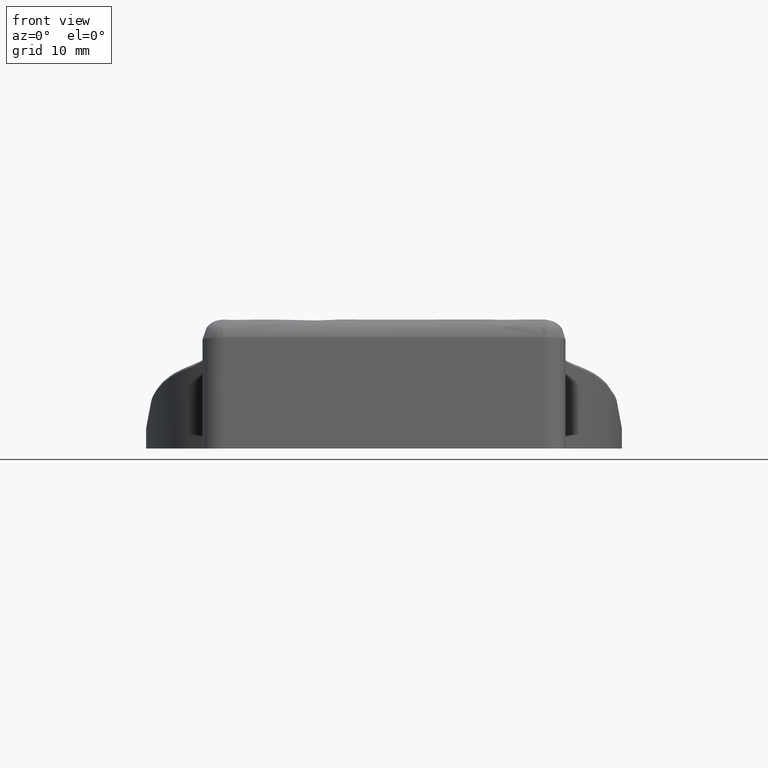
[diagram: clean part render]
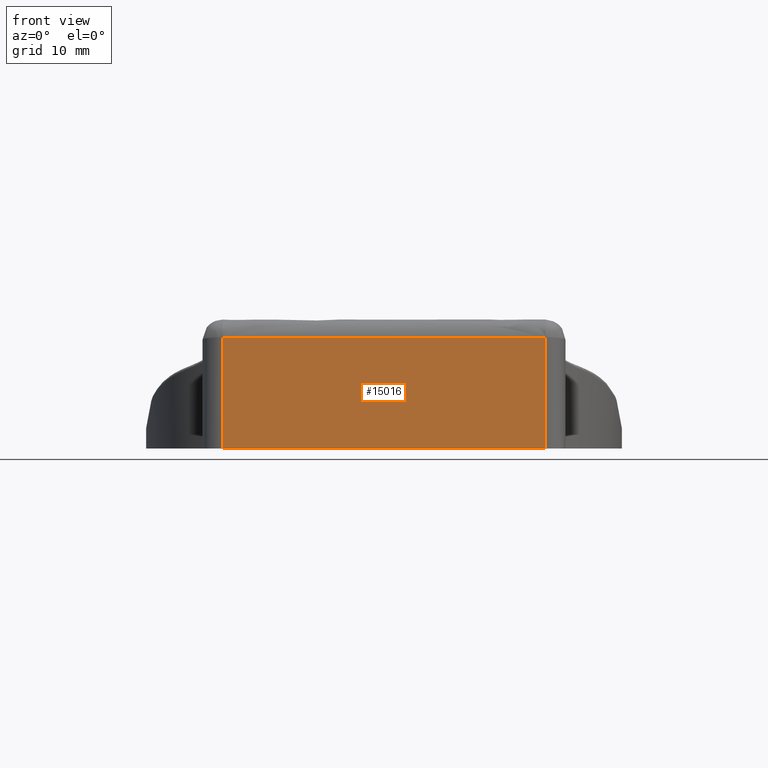
[diagram: same view with one face highlighted and labeled with its STEP entity id]
A machine part, front view. The second image highlights one B-rep face of the part: STEP entity #15016.
In plain terms, the highlighted face is a freeform B-spline surface patch.
Its self-contained STEP definition (entity closure, byte-faithful):
#13907=CARTESIAN_POINT('',(-20.0,1.695001050266180,13.804673409385099));
#13908=VERTEX_POINT('',#13907);
#13953=CARTESIAN_POINT('',(-20.0,1.136868E-013,6.961081E-030));
#13954=VERTEX_POINT('',#13953);
#13970=CARTESIAN_POINT('',(-20.0,1.695001050266180,13.804673409385099));
#13971=CARTESIAN_POINT('',(-20.0,1.136868E-013,6.961081E-030));
#13972=QUASI_UNIFORM_CURVE('',1,(#13970,#13971),.UNSPECIFIED.,.F.,.U.);
#13973=EDGE_CURVE('',#13908,#13954,#13972,.T.);
#14045=CARTESIAN_POINT('',(20.0,1.136868E-013,6.961081E-030));
#14046=VERTEX_POINT('',#14045);
#14067=CARTESIAN_POINT('',(20.0,1.695001050266180,13.804673409385099));
#14068=VERTEX_POINT('',#14067);
#14082=CARTESIAN_POINT('',(20.0,1.136868E-013,6.961081E-030));
#14083=CARTESIAN_POINT('',(20.0,1.695001050266180,13.804673409385099));
#14084=QUASI_UNIFORM_CURVE('',1,(#14082,#14083),.UNSPECIFIED.,.F.,.U.);
#14085=EDGE_CURVE('',#14046,#14068,#14084,.T.);
#14261=CARTESIAN_POINT('',(20.0,1.695001050266180,13.804673409385099));
#14262=CARTESIAN_POINT('',(-20.0,1.695001050266180,13.804673409385099));
#14263=QUASI_UNIFORM_CURVE('',1,(#14261,#14262),.UNSPECIFIED.,.F.,.U.);
#14264=EDGE_CURVE('',#14068,#13908,#14263,.T.);
#15001=CARTESIAN_POINT('',(-21.997999922472239,-0.084665293119707,-0.689543360722659));
#15002=CARTESIAN_POINT('',(-21.997999922472239,1.779666267613534,14.494216152990781));
#15003=CARTESIAN_POINT('',(21.998000995355849,-0.084665293119707,-0.689543360722659));
#15004=CARTESIAN_POINT('',(21.998000995355849,1.779666267613534,14.494216152990781));
#15005=B_SPLINE_SURFACE_WITH_KNOTS('',1,1,((#15001,#15003),(#15002,#15004)),.UNSPECIFIED.,.F.,.F.,.U.,(2,2),(2,2),(0.0,15.297786935979641),(0.0,43.996000917828077),.UNSPECIFIED.);
#15006=ORIENTED_EDGE('',*,*,#14264,.T.);
#15007=ORIENTED_EDGE('',*,*,#13973,.T.);
#15008=CARTESIAN_POINT('',(20.0,1.136868E-013,6.961081E-030));
#15009=CARTESIAN_POINT('',(-20.0,1.136868E-013,6.961081E-030));
#15010=QUASI_UNIFORM_CURVE('',1,(#15008,#15009),.UNSPECIFIED.,.F.,.U.);
#15011=EDGE_CURVE('',#14046,#13954,#15010,.T.);
#15012=ORIENTED_EDGE('',*,*,#15011,.F.);
#15013=ORIENTED_EDGE('',*,*,#14085,.T.);
#15014=EDGE_LOOP('',(#15006,#15007,#15012,#15013));
#15015=FACE_OUTER_BOUND('',#15014,.T.);
#15016=ADVANCED_FACE('',(#15015),#15005,.F.);